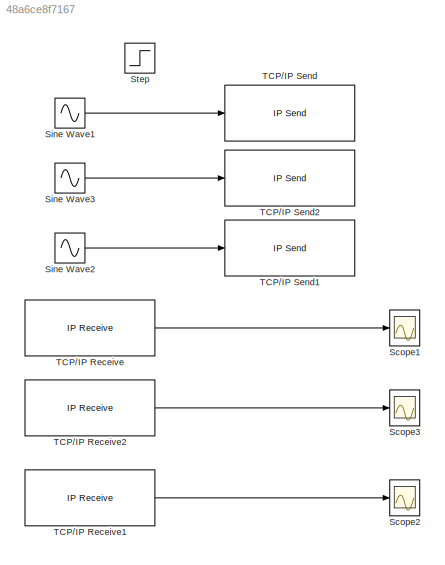
MODEL slx_48a6ce8f7167
KIND model
CONFIG AbsTol = auto
CONFIG EnableMultiTasking = off
CONFIG FixedStep = auto
CONFIG MaxStep = auto
CONFIG MinStep = auto
CONFIG RelTol = 1e-3
CONFIG SampleTimeConstraint = Unconstrained
CONFIG SolverName = FixedStepDiscrete
CONFIG StartTime = 0.0
CONFIG StopTime = 10
BLOCK [Scope] Scope1
  Floating = off
  NumInputPorts = 1
  Ports = [1]
  ScopeSpecificationString = Simulink.scopes.TimeScopeBlockCfg('CurrentConfiguration', extmgr.ConfigurationSet(extmgr.Configuration('Core','General UI',true),extmgr.Configuration('Core','Source UI',true),extmgr.Configuration('Sources','WiredSimulink',true,'DataLoggingVariableName','ScopeData1'),extmgr.Configuration('Visuals','Time Domain',true,'SerializedDisplays',{struct('MinYLimReal','-0.125','MaxYLimReal','1.125','YLabelRe...<+1455ch>
BLOCK [Scope] Scope2
  Commented = on
  Floating = off
  NumInputPorts = 1
  Ports = [1]
  ScopeSpecificationString = Simulink.scopes.TimeScopeBlockCfg('CurrentConfiguration', extmgr.ConfigurationSet(extmgr.Configuration('Core','General UI',true),extmgr.Configuration('Core','Source UI',true),extmgr.Configuration('Sources','WiredSimulink',true,'DataLoggingVariableName','ScopeData1'),extmgr.Configuration('Visuals','Time Domain',true,'SerializedDisplays',{struct('MinYLimReal','0.9','MaxYLimReal','1.1','YLabelReal','...<+1435ch>
BLOCK [Scope] Scope3
  Floating = off
  NumInputPorts = 1
  Ports = [1]
  ScopeSpecificationString = Simulink.scopes.TimeScopeBlockCfg('CurrentConfiguration', extmgr.ConfigurationSet(extmgr.Configuration('Core','General UI',true),extmgr.Configuration('Core','Source UI',true),extmgr.Configuration('Sources','WiredSimulink',true,'DataLoggingVariableName','ScopeData1'),extmgr.Configuration('Visuals','Time Domain',true,'SerializedDisplays',{struct('MinYLimReal','-1.1','MaxYLimReal','-0.9','YLabelReal'...<+1447ch>
BLOCK [Sin] Sine Wave1
  Amplitude = 2
  Frequency = 2*pi/10
  Ports = [0, 1]
  SampleTime = 0.05
BLOCK [Sin] Sine Wave2
  Amplitude = 2
  Commented = on
  Frequency = 2*pi/10
  Ports = [0, 1]
  SampleTime = 0.05
BLOCK [Sin] Sine Wave3
  Amplitude = 2
  Frequency = 2*pi/10
  Ports = [0, 1]
  SampleTime = 0.05
BLOCK [Step] Step
  Commented = on
  SampleTime = 0.1
BLOCK [Reference] TCP//IP Receive  REF=instrumentlib/TCP//IP Receive
  Ports = [0, 1]
  Priority = 2
  SourceBlock = instrumentlib/TCP//IP Receive
  SourceProductBaseCode = IC
  SourceType = TCP/IP Receive
BLOCK [Reference] TCP//IP Receive1  REF=instrumentlib/TCP//IP Receive
  Commented = on
  Ports = [0, 1]
  Priority = 2
  SourceBlock = instrumentlib/TCP//IP Receive
  SourceProductBaseCode = IC
  SourceType = TCP/IP Receive
BLOCK [Reference] TCP//IP Receive2  REF=instrumentlib/TCP//IP Receive
  Ports = [0, 1]
  Priority = 2
  SourceBlock = instrumentlib/TCP//IP Receive
  SourceProductBaseCode = IC
  SourceType = TCP/IP Receive
BLOCK [Reference] TCP//IP Send  REF=instrumentlib/TCP//IP Send
  Ports = [1]
  Priority = 1
  SourceBlock = instrumentlib/TCP//IP Send
  SourceProductBaseCode = IC
  SourceType = TCP/IP Send
BLOCK [Reference] TCP//IP Send1  REF=instrumentlib/TCP//IP Send
  Commented = on
  Ports = [1]
  Priority = 1
  SourceBlock = instrumentlib/TCP//IP Send
  SourceProductBaseCode = IC
  SourceType = TCP/IP Send
BLOCK [Reference] TCP//IP Send2  REF=instrumentlib/TCP//IP Send
  Ports = [1]
  Priority = 1
  SourceBlock = instrumentlib/TCP//IP Send
  SourceProductBaseCode = IC
  SourceType = TCP/IP Send
LINE Sine Wave1:1 -> TCP//IP Send:1
LINE Sine Wave2:1 -> TCP//IP Send1:1
LINE Sine Wave3:1 -> TCP//IP Send2:1
LINE TCP//IP Receive1:1 -> Scope2:1
LINE TCP//IP Receive2:1 -> Scope3:1
LINE TCP//IP Receive:1 -> Scope1:1
